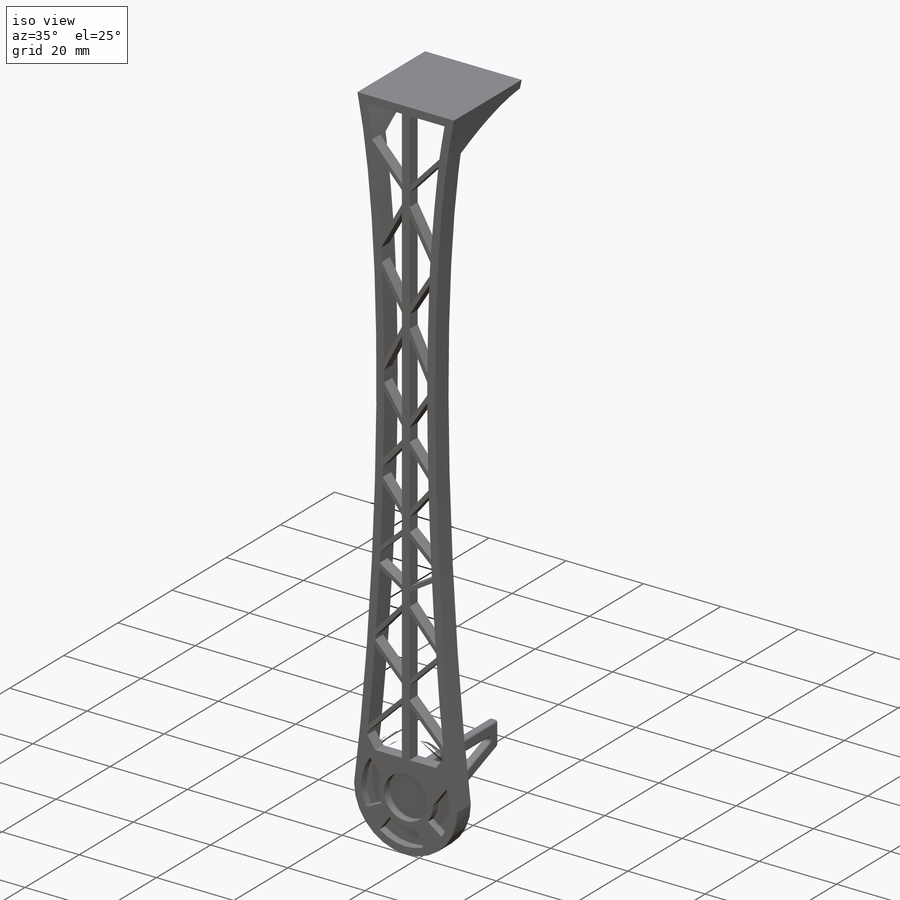
[diagram: iso view]
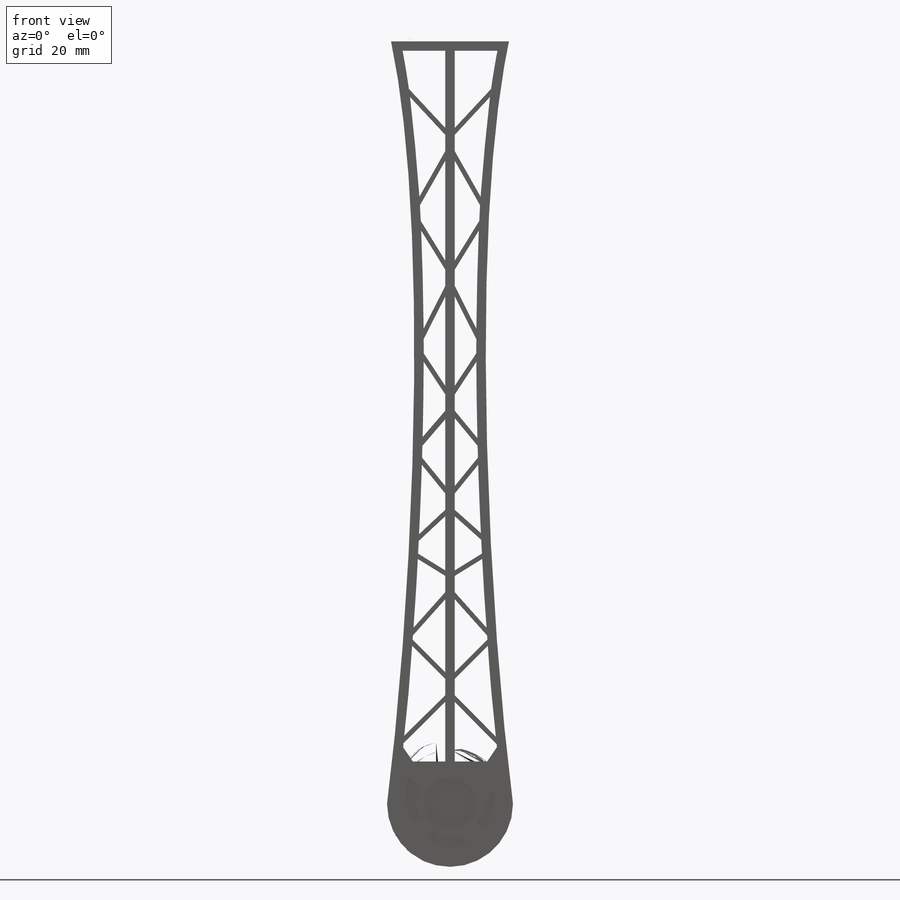
[diagram: front view]
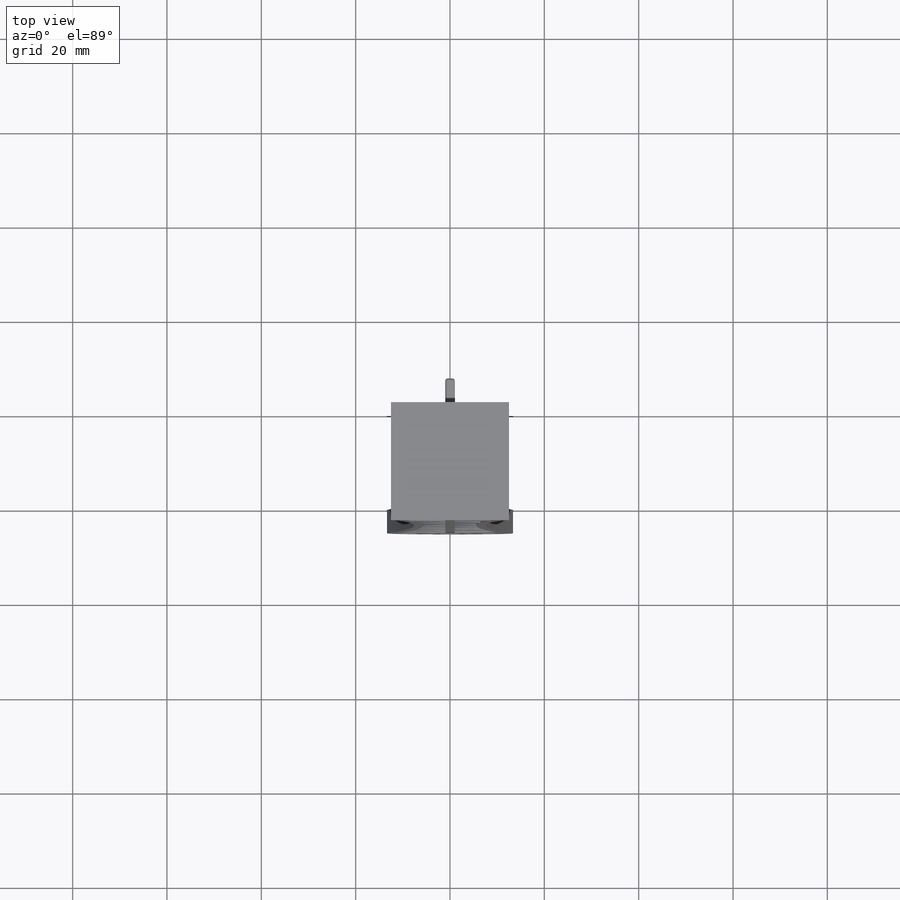
[diagram: top view]
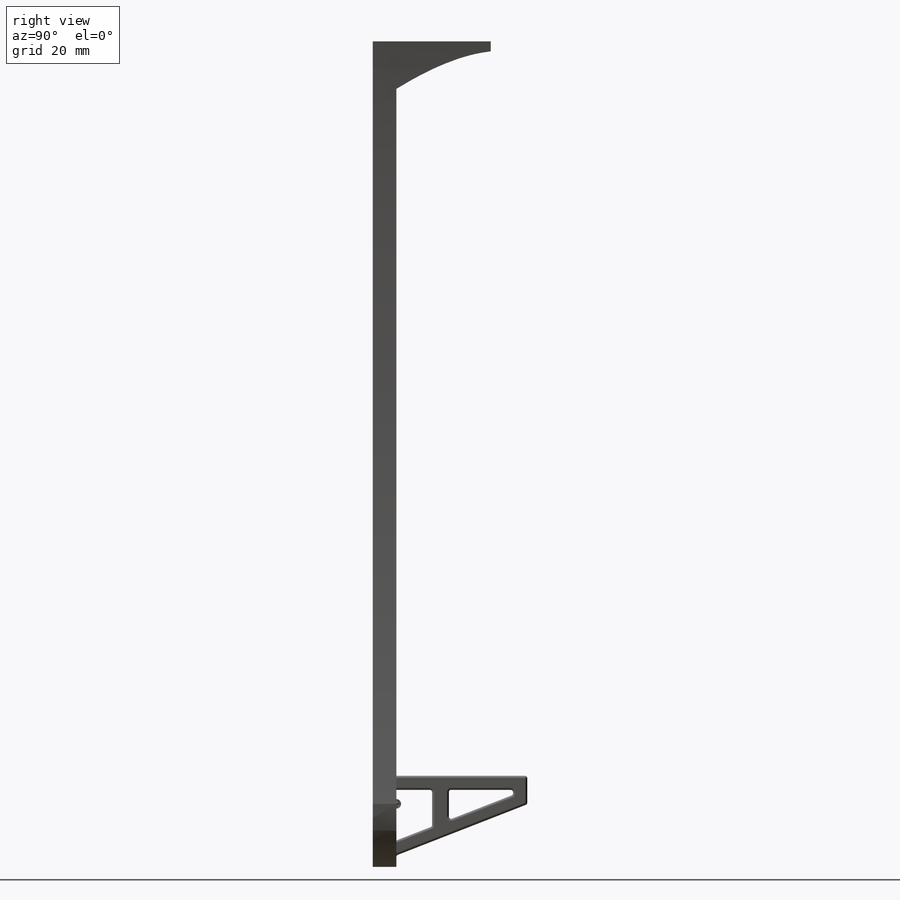
[diagram: right view]
SOLIDWORKS PART (.sldprt)
format: sldprt  version: not decoded by parser v0  size: 2,155,008 bytes
history: native  units: mm
features: sketch x7, fillet x6, cut_extrude x4, extrude x3, material x1, plane x1 (+13 scaffold rows collapsed)
feature tree (35):
  scaffold x13  (default folders/planes/origin — collapsed)
  material  "S-Glass Fiber"
  sketch  "Sketch1"  dims[D1=175.0mm D2=25.0mm]
  extrude  "Boss-Extrude1"  Depth=5mm
  sketch  "Sketch2"  dims[D1=0.0mm D2=2.0mm]
  cut_extrude  "Cut-Extrude1"  Depth=2mm
  plane  "Plane1"
  sketch  "Sketch3"  dims[D1=2.0mm]
  extrude  "Boss-Extrude2"  Depth=1mm
  fillet  "Fillet4"  Radius=0.5mm
  fillet  "Fillet5"  Radius=0.5mm
  fillet  "Fillet6"  Radius=0.5mm
  fillet  "Fillet7"  Radius=0.5mm
  fillet  "Fillet8"  Radius=0.5mm
  fillet  "Fillet9"  Radius=0.5mm
  sketch  "Sketch4"  dims[c1.D3=1.0mm c1.D1=2.0mm c2.D3=1.0mm c2.D4=1.0mm c2.D5=1.0mm c2.D6=1.0mm c2.D7=1.0mm c2.D8=~16.029829mm c3.D8=179.2147deg c4.D8=~16.029829mm c5.D8=179.2147deg c6.D8=~16.383913mm c7.D8=179.2147deg c8.D8=1.0mm c8.D9=1.0mm c8.D10=1.0mm c8.D11=1.0mm c8.D12=~11.362344mm c9.D12=~0.651939deg c10.D12=1.0mm c10.D13=1.0mm c10.D14=~12.516692mm c11.D14=~179.515923deg c12.D14=1.0mm c12.D15=~2.069479mm c13.D15=1.0mm c13.D1=0.0mm c13.D2=0.0mm c14.D1=2.0mm c14.D3=2.0mm]
  cut_extrude  "Cut-Extrude2"  Depth=10mm
  sketch  "Sketch5"
  cut_extrude  "Cut-Extrude3"  Depth=2mm
  sketch  "Sketch6"
  extrude  "Boss-Extrude3"  Depth=20mm
  sketch  "Sketch7"
  cut_extrude  "Cut-Extrude4"  [1 undecoded]
decode coverage: 16 of 20 modeling features carry decoded parameters
note: ~ marks probable driven/reference dimensions
note: 1 parameter value undecoded
note: suppression state not decoded; provenance and decode notes live in map.json
